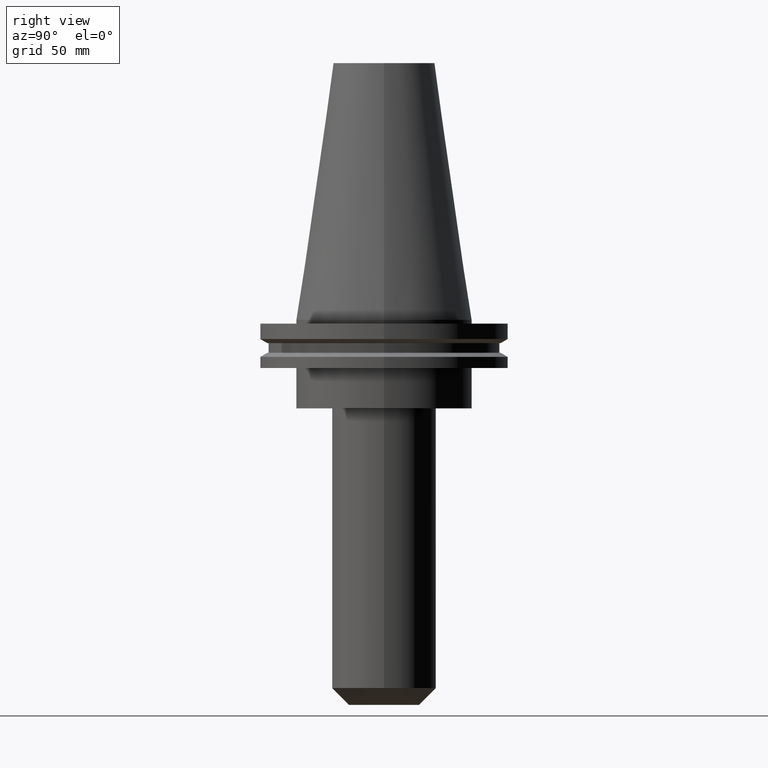
[diagram: clean part render]
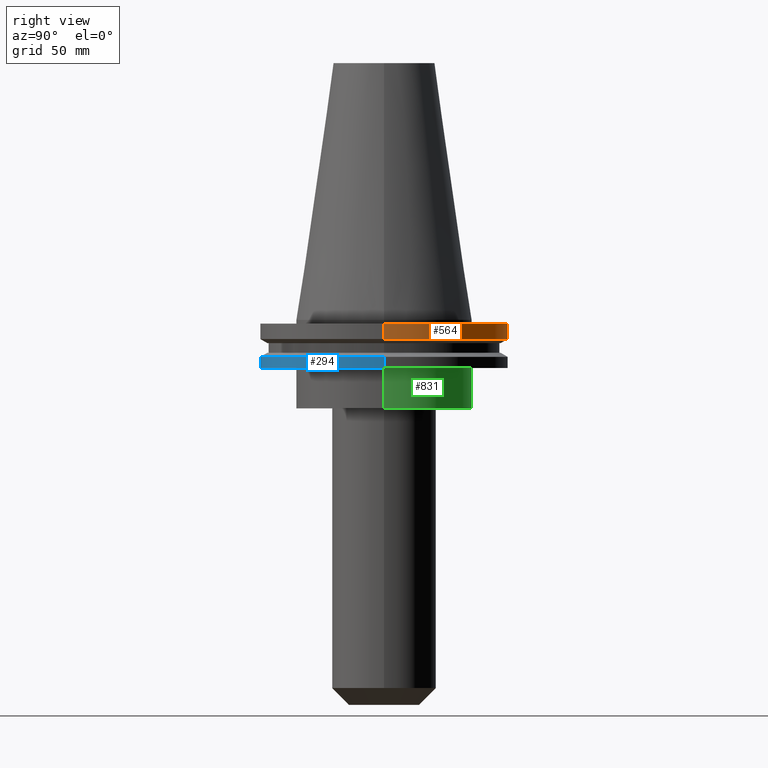
[diagram: same view with three faces highlighted in distinct colors, each labeled with its STEP entity id]
A machine part, right view with three faces highlighted in distinct colors.
Their STEP definitions:

[orange] entity #564 — the highlighted cylindrical surface (partial cylindrical patch) has radius 49.215 mm, axis along (-0, -0, 1).
#15 = EDGE_CURVE ( 'NONE', #353, #425, #183, .T. ) ;
#32 = DIRECTION ( 'NONE',  ( -0.000000000000000000, -0.000000000000000000, 1.000000000000000000 ) ) ;
#50 = DIRECTION ( 'NONE',  ( 1.000000000000000000, 0.000000000000000000, 0.000000000000000000 ) ) ;
#72 = ORIENTED_EDGE ( 'NONE', *, *, #350, .F. ) ;
#85 = CARTESIAN_POINT ( 'NONE',  ( 49.21500000000000341, 0.000000000000000000, -7.602389855251287187 ) ) ;
#93 = AXIS2_PLACEMENT_3D ( 'NONE', #515, #295, #627 ) ;
#98 = VERTEX_POINT ( 'NONE', #457 ) ;
#108 = VERTEX_POINT ( 'NONE', #765 ) ;
#183 = LINE ( 'NONE', #248, #768 ) ;
#224 = CIRCLE ( 'NONE', #93, 49.21499999999999631 ) ;
#234 = DIRECTION ( 'NONE',  ( -0.000000000000000000, -0.000000000000000000, 1.000000000000000000 ) ) ;
#240 = AXIS2_PLACEMENT_3D ( 'NONE', #583, #234, #366 ) ;
#245 = ORIENTED_EDGE ( 'NONE', *, *, #422, .T. ) ;
#248 = CARTESIAN_POINT ( 'NONE',  ( 49.21499999999999631, 0.000000000000000000, 101.5999999999999943 ) ) ;
#249 = FACE_OUTER_BOUND ( 'NONE', #660, .T. ) ;
#260 = AXIS2_PLACEMENT_3D ( 'NONE', #507, #766, #50 ) ;
#286 = CARTESIAN_POINT ( 'NONE',  ( -49.21499999999999631, 6.027099222003697826E-15, 101.5999999999999943 ) ) ;
#295 = DIRECTION ( 'NONE',  ( -0.000000000000000000, -0.000000000000000000, 1.000000000000000000 ) ) ;
#322 = DIRECTION ( 'NONE',  ( -0.000000000000000000, -0.000000000000000000, 1.000000000000000000 ) ) ;
#331 = EDGE_CURVE ( 'NONE', #108, #98, #359, .T. ) ;
#350 = EDGE_CURVE ( 'NONE', #425, #98, #224, .T. ) ;
#353 = VERTEX_POINT ( 'NONE', #85 ) ;
#359 = LINE ( 'NONE', #286, #430 ) ;
#366 = DIRECTION ( 'NONE',  ( 1.000000000000000000, 0.000000000000000000, 0.000000000000000000 ) ) ;
#422 = EDGE_CURVE ( 'NONE', #353, #108, #646, .T. ) ;
#425 = VERTEX_POINT ( 'NONE', #618 ) ;
#430 = VECTOR ( 'NONE', #32, 1000.000000000000000 ) ;
#457 = CARTESIAN_POINT ( 'NONE',  ( -49.21499999999999631, 6.027099222003697826E-15, -1.499999999999987566 ) ) ;
#507 = CARTESIAN_POINT ( 'NONE',  ( 0.000000000000000000, 0.000000000000000000, 101.5999999999999943 ) ) ;
#515 = CARTESIAN_POINT ( 'NONE',  ( 0.000000000000000000, 0.000000000000000000, -1.499999999999987566 ) ) ;
#518 = CYLINDRICAL_SURFACE ( 'NONE', #260, 49.21499999999999631 ) ;
#564 = ADVANCED_FACE ( 'NONE', ( #249 ), #518, .T. ) ;
#583 = CARTESIAN_POINT ( 'NONE',  ( 0.000000000000000000, 0.000000000000000000, -7.602389855251287187 ) ) ;
#618 = CARTESIAN_POINT ( 'NONE',  ( 49.21499999999999631, 0.000000000000000000, -1.499999999999987566 ) ) ;
#627 = DIRECTION ( 'NONE',  ( 1.000000000000000000, 0.000000000000000000, 0.000000000000000000 ) ) ;
#646 = CIRCLE ( 'NONE', #240, 49.21500000000000341 ) ;
#660 = EDGE_LOOP ( 'NONE', ( #245, #700, #72, #743 ) ) ;
#700 = ORIENTED_EDGE ( 'NONE', *, *, #331, .T. ) ;
#743 = ORIENTED_EDGE ( 'NONE', *, *, #15, .F. ) ;
#765 = CARTESIAN_POINT ( 'NONE',  ( -49.21500000000000341, 6.027099222003699404E-15, -7.602389855251287187 ) ) ;
#766 = DIRECTION ( 'NONE',  ( -0.000000000000000000, -0.000000000000000000, 1.000000000000000000 ) ) ;
#768 = VECTOR ( 'NONE', #322, 1000.000000000000000 ) ;

[blue] entity #294 — the highlighted cylindrical surface (partial cylindrical patch) has radius 49.215 mm, axis along (-0, -0, 1).
#13 = CARTESIAN_POINT ( 'NONE',  ( 49.21499999999998920, 0.000000000000000000, 101.5999999999999943 ) ) ;
#52 = ORIENTED_EDGE ( 'NONE', *, *, #241, .T. ) ;
#61 = CARTESIAN_POINT ( 'NONE',  ( -49.21499999999998920, 6.027099222003697037E-15, -14.65761014474876944 ) ) ;
#73 = LINE ( 'NONE', #13, #448 ) ;
#120 = VERTEX_POINT ( 'NONE', #61 ) ;
#150 = LINE ( 'NONE', #410, #289 ) ;
#160 = EDGE_CURVE ( 'NONE', #361, #120, #150, .T. ) ;
#165 = CARTESIAN_POINT ( 'NONE',  ( 49.21499999999998920, 0.000000000000000000, -19.04999999999999716 ) ) ;
#235 = CARTESIAN_POINT ( 'NONE',  ( 0.000000000000000000, 0.000000000000000000, -19.04999999999999716 ) ) ;
#241 = EDGE_CURVE ( 'NONE', #419, #504, #73, .T. ) ;
#270 = DIRECTION ( 'NONE',  ( -0.000000000000000000, -0.000000000000000000, 1.000000000000000000 ) ) ;
#289 = VECTOR ( 'NONE', #609, 1000.000000000000000 ) ;
#294 = ADVANCED_FACE ( 'NONE', ( #739 ), #468, .T. ) ;
#304 = ORIENTED_EDGE ( 'NONE', *, *, #318, .F. ) ;
#318 = EDGE_CURVE ( 'NONE', #120, #504, #842, .T. ) ;
#319 = CARTESIAN_POINT ( 'NONE',  ( -49.21499999999998920, 6.027099222003697037E-15, -19.04999999999999716 ) ) ;
#328 = CARTESIAN_POINT ( 'NONE',  ( 49.21499999999998920, 0.000000000000000000, -14.65761014474876944 ) ) ;
#357 = ORIENTED_EDGE ( 'NONE', *, *, #848, .T. ) ;
#361 = VERTEX_POINT ( 'NONE', #319 ) ;
#362 = AXIS2_PLACEMENT_3D ( 'NONE', #402, #270, #534 ) ;
#402 = CARTESIAN_POINT ( 'NONE',  ( 0.000000000000000000, 0.000000000000000000, 101.5999999999999943 ) ) ;
#410 = CARTESIAN_POINT ( 'NONE',  ( -49.21499999999998920, 6.027099222003697037E-15, 101.5999999999999943 ) ) ;
#416 = CARTESIAN_POINT ( 'NONE',  ( 0.000000000000000000, 0.000000000000000000, -14.65761014474876944 ) ) ;
#419 = VERTEX_POINT ( 'NONE', #165 ) ;
#448 = VECTOR ( 'NONE', #482, 1000.000000000000000 ) ;
#468 = CYLINDRICAL_SURFACE ( 'NONE', #362, 49.21499999999998920 ) ;
#482 = DIRECTION ( 'NONE',  ( -0.000000000000000000, -0.000000000000000000, 1.000000000000000000 ) ) ;
#497 = AXIS2_PLACEMENT_3D ( 'NONE', #416, #578, #623 ) ;
#498 = DIRECTION ( 'NONE',  ( -0.000000000000000000, -0.000000000000000000, 1.000000000000000000 ) ) ;
#504 = VERTEX_POINT ( 'NONE', #328 ) ;
#534 = DIRECTION ( 'NONE',  ( 1.000000000000000000, 0.000000000000000000, 0.000000000000000000 ) ) ;
#537 = AXIS2_PLACEMENT_3D ( 'NONE', #235, #498, #740 ) ;
#578 = DIRECTION ( 'NONE',  ( -0.000000000000000000, -0.000000000000000000, 1.000000000000000000 ) ) ;
#598 = EDGE_LOOP ( 'NONE', ( #635, #357, #52, #304 ) ) ;
#609 = DIRECTION ( 'NONE',  ( -0.000000000000000000, -0.000000000000000000, 1.000000000000000000 ) ) ;
#623 = DIRECTION ( 'NONE',  ( 1.000000000000000000, 0.000000000000000000, 0.000000000000000000 ) ) ;
#635 = ORIENTED_EDGE ( 'NONE', *, *, #160, .F. ) ;
#737 = CIRCLE ( 'NONE', #537, 49.21499999999998920 ) ;
#739 = FACE_OUTER_BOUND ( 'NONE', #598, .T. ) ;
#740 = DIRECTION ( 'NONE',  ( 1.000000000000000000, 0.000000000000000000, 0.000000000000000000 ) ) ;
#842 = CIRCLE ( 'NONE', #497, 49.21499999999998920 ) ;
#848 = EDGE_CURVE ( 'NONE', #361, #419, #737, .T. ) ;

[green] entity #831 — the highlighted cylindrical surface (partial cylindrical patch) has radius 34.925 mm, axis along (-0, -0, 1).
#1 = AXIS2_PLACEMENT_3D ( 'NONE', #845, #312, #385 ) ;
#22 = EDGE_CURVE ( 'NONE', #826, #92, #113, .T. ) ;
#33 = DIRECTION ( 'NONE',  ( 1.000000000000000000, 0.000000000000000000, 0.000000000000000000 ) ) ;
#53 = EDGE_CURVE ( 'NONE', #239, #92, #608, .T. ) ;
#92 = VERTEX_POINT ( 'NONE', #647 ) ;
#113 = LINE ( 'NONE', #258, #670 ) ;
#140 = DIRECTION ( 'NONE',  ( -0.000000000000000000, -0.000000000000000000, 1.000000000000000000 ) ) ;
#178 = VECTOR ( 'NONE', #140, 1000.000000000000000 ) ;
#189 = AXIS2_PLACEMENT_3D ( 'NONE', #199, #735, #203 ) ;
#190 = ORIENTED_EDGE ( 'NONE', *, *, #53, .F. ) ;
#196 = VERTEX_POINT ( 'NONE', #800 ) ;
#199 = CARTESIAN_POINT ( 'NONE',  ( 0.000000000000000000, 0.000000000000000000, -35.04999999999999716 ) ) ;
#203 = DIRECTION ( 'NONE',  ( 1.000000000000000000, 0.000000000000000000, 0.000000000000000000 ) ) ;
#232 = EDGE_LOOP ( 'NONE', ( #502, #814, #190, #644 ) ) ;
#239 = VERTEX_POINT ( 'NONE', #798 ) ;
#258 = CARTESIAN_POINT ( 'NONE',  ( -34.92499999999999716, 4.277078946022130887E-15, 101.5999999999999943 ) ) ;
#278 = EDGE_CURVE ( 'NONE', #196, #239, #406, .T. ) ;
#312 = DIRECTION ( 'NONE',  ( -0.000000000000000000, -0.000000000000000000, 1.000000000000000000 ) ) ;
#338 = CARTESIAN_POINT ( 'NONE',  ( 34.92499999999999716, 0.000000000000000000, 101.5999999999999943 ) ) ;
#371 = FACE_OUTER_BOUND ( 'NONE', #232, .T. ) ;
#385 = DIRECTION ( 'NONE',  ( 1.000000000000000000, 0.000000000000000000, 0.000000000000000000 ) ) ;
#406 = LINE ( 'NONE', #338, #178 ) ;
#456 = CIRCLE ( 'NONE', #189, 34.92499999999999716 ) ;
#502 = ORIENTED_EDGE ( 'NONE', *, *, #677, .T. ) ;
#563 = DIRECTION ( 'NONE',  ( -0.000000000000000000, -0.000000000000000000, 1.000000000000000000 ) ) ;
#580 = DIRECTION ( 'NONE',  ( -0.000000000000000000, -0.000000000000000000, 1.000000000000000000 ) ) ;
#608 = CIRCLE ( 'NONE', #1, 34.92499999999999716 ) ;
#624 = CARTESIAN_POINT ( 'NONE',  ( 0.000000000000000000, 0.000000000000000000, 101.5999999999999943 ) ) ;
#644 = ORIENTED_EDGE ( 'NONE', *, *, #278, .F. ) ;
#647 = CARTESIAN_POINT ( 'NONE',  ( -34.92499999999999716, 4.277078946022130887E-15, -19.04999999999999716 ) ) ;
#670 = VECTOR ( 'NONE', #580, 1000.000000000000000 ) ;
#677 = EDGE_CURVE ( 'NONE', #196, #826, #456, .T. ) ;
#688 = CYLINDRICAL_SURFACE ( 'NONE', #793, 34.92499999999999716 ) ;
#735 = DIRECTION ( 'NONE',  ( -0.000000000000000000, -0.000000000000000000, 1.000000000000000000 ) ) ;
#753 = CARTESIAN_POINT ( 'NONE',  ( -34.92499999999999716, 4.277078946022130887E-15, -35.04999999999999716 ) ) ;
#793 = AXIS2_PLACEMENT_3D ( 'NONE', #624, #563, #33 ) ;
#798 = CARTESIAN_POINT ( 'NONE',  ( 34.92499999999999716, 0.000000000000000000, -19.04999999999999716 ) ) ;
#800 = CARTESIAN_POINT ( 'NONE',  ( 34.92499999999999716, 0.000000000000000000, -35.04999999999999716 ) ) ;
#814 = ORIENTED_EDGE ( 'NONE', *, *, #22, .T. ) ;
#826 = VERTEX_POINT ( 'NONE', #753 ) ;
#831 = ADVANCED_FACE ( 'NONE', ( #371 ), #688, .T. ) ;
#845 = CARTESIAN_POINT ( 'NONE',  ( 0.000000000000000000, 0.000000000000000000, -19.04999999999999716 ) ) ;